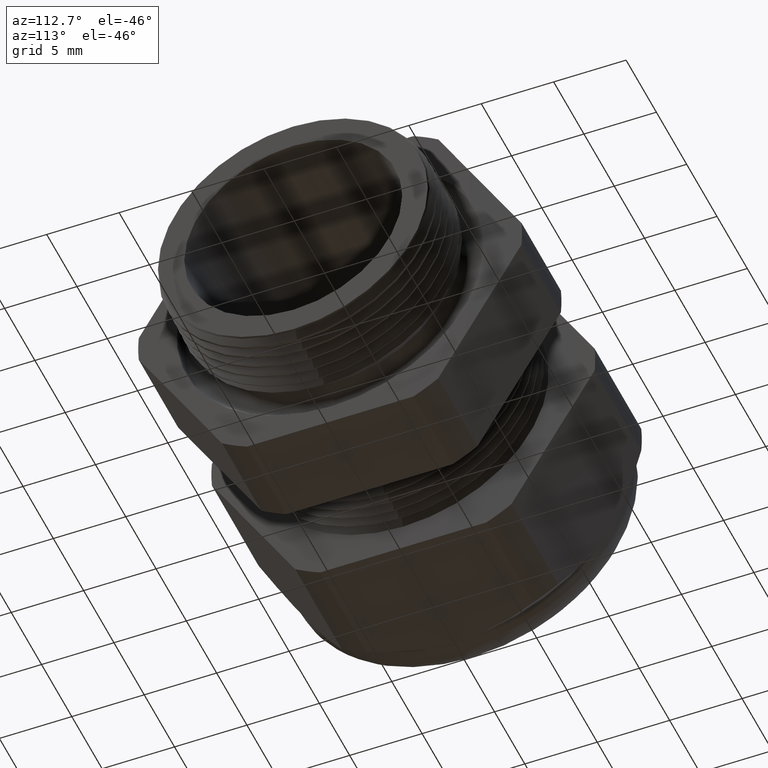
[diagram: clean part render]
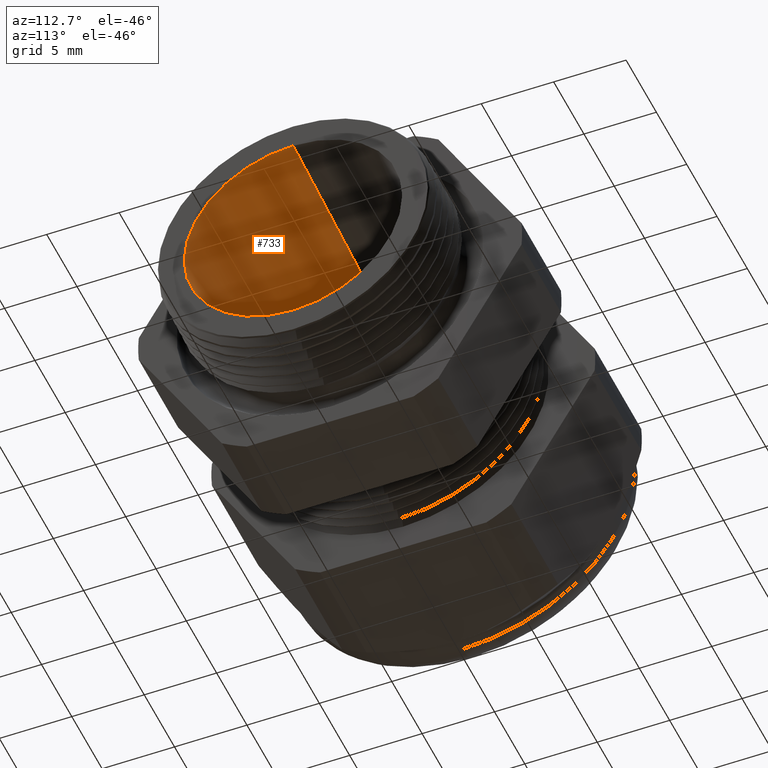
[diagram: same view with one face highlighted and labeled with its STEP entity id]
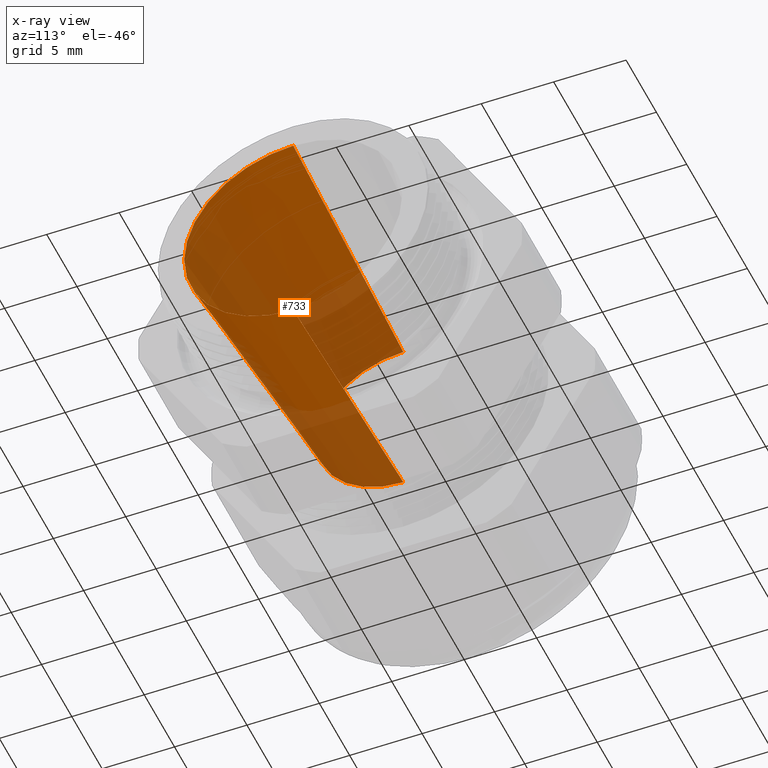
[diagram: x-ray of the same camera — body ghosted, the highlighted face saturated]
A machine part, auxiliary view. The second image highlights one B-rep face of the part: STEP entity #733.
The next image is the same camera in x-ray: the body ghosted, the highlighted face saturated — about 32% of this face is hidden behind the body in this view.
In plain terms, the highlighted conical surface has half-angle 4.895 deg.
Its self-contained STEP definition (entity closure, byte-faithful):
#733 = ADVANCED_FACE ( 'NONE', ( #2550 ), #2549, .F. ) ;
#734 = EDGE_LOOP ( 'NONE', ( #789, #793, #796, #799 ) ) ;
#789 = ORIENTED_EDGE ( 'NONE', *, *, #790, .F. ) ;
#790 = EDGE_CURVE ( 'NONE', #791, #792, #2693, .T. ) ;
#791 = VERTEX_POINT ( 'NONE', #2688 ) ;
#792 = VERTEX_POINT ( 'NONE', #2687 ) ;
#793 = ORIENTED_EDGE ( 'NONE', *, *, #794, .T. ) ;
#794 = EDGE_CURVE ( 'NONE', #791, #795, #2686, .T. ) ;
#795 = VERTEX_POINT ( 'NONE', #2682 ) ;
#796 = ORIENTED_EDGE ( 'NONE', *, *, #797, .T. ) ;
#797 = EDGE_CURVE ( 'NONE', #795, #798, #2681, .T. ) ;
#798 = VERTEX_POINT ( 'NONE', #2676 ) ;
#799 = ORIENTED_EDGE ( 'NONE', *, *, #800, .F. ) ;
#800 = EDGE_CURVE ( 'NONE', #792, #798, #2740, .T. ) ;
#2549 = CONICAL_SURFACE ( 'NONE', #2613, 0.2349999999999999900, 0.08542605105028124000 ) ;
#2550 = FACE_OUTER_BOUND ( 'NONE', #734, .T. ) ;
#2610 = DIRECTION ( 'NONE',  ( 0.0000000000000000000, 0.0000000000000000000, -1.000000000000000000 ) ) ;
#2611 = DIRECTION ( 'NONE',  ( 1.000000000000000000, 0.0000000000000000000, 0.0000000000000000000 ) ) ;
#2612 = CARTESIAN_POINT ( 'NONE',  ( -0.7854330708661414500, 0.0000000000000000000, 0.0000000000000000000 ) ) ;
#2613 = AXIS2_PLACEMENT_3D ( 'NONE', #2612, #2611, #2610 ) ;
#2676 = CARTESIAN_POINT ( 'NONE',  ( -0.06999999999999996500, 0.0000000000000000000, -0.2962657257183017900 ) ) ;
#2677 = DIRECTION ( 'NONE',  ( 0.0000000000000000000, 0.0000000000000000000, -1.000000000000000000 ) ) ;
#2678 = DIRECTION ( 'NONE',  ( 1.000000000000000000, 0.0000000000000000000, 0.0000000000000000000 ) ) ;
#2679 = CARTESIAN_POINT ( 'NONE',  ( -0.06999999999999996500, 0.0000000000000000000, 0.0000000000000000000 ) ) ;
#2680 = AXIS2_PLACEMENT_3D ( 'NONE', #2679, #2678, #2677 ) ;
#2681 = CIRCLE ( 'NONE', #2680, 0.2962657257183017900 ) ;
#2682 = CARTESIAN_POINT ( 'NONE',  ( -0.06999999999999996500, 3.628208726979859300E-017, 0.2962657257183017900 ) ) ;
#2683 = DIRECTION ( 'NONE',  ( 0.9963534133243852100, 1.044895443711659700E-017, 0.08532218795159196600 ) ) ;
#2684 = VECTOR ( 'NONE', #2683, 39.37007874015748900 ) ;
#2685 = CARTESIAN_POINT ( 'NONE',  ( -0.7854330708661414500, 2.877919977996279800E-017, 0.2349999999999999900 ) ) ;
#2686 = LINE ( 'NONE', #2685, #2684 ) ;
#2687 = CARTESIAN_POINT ( 'NONE',  ( -0.7854330708661414500, 0.0000000000000000000, -0.2349999999999999900 ) ) ;
#2688 = CARTESIAN_POINT ( 'NONE',  ( -0.7854330708661414500, 2.877919977996279800E-017, 0.2349999999999999900 ) ) ;
#2689 = DIRECTION ( 'NONE',  ( 0.0000000000000000000, 0.0000000000000000000, -1.000000000000000000 ) ) ;
#2690 = DIRECTION ( 'NONE',  ( 1.000000000000000000, 0.0000000000000000000, 0.0000000000000000000 ) ) ;
#2691 = CARTESIAN_POINT ( 'NONE',  ( -0.7854330708661414500, 0.0000000000000000000, 0.0000000000000000000 ) ) ;
#2692 = AXIS2_PLACEMENT_3D ( 'NONE', #2691, #2690, #2689 ) ;
#2693 = CIRCLE ( 'NONE', #2692, 0.2349999999999999900 ) ;
#2737 = DIRECTION ( 'NONE',  ( 0.9963534133243852100, 0.0000000000000000000, -0.08532218795159196600 ) ) ;
#2738 = VECTOR ( 'NONE', #2737, 39.37007874015748900 ) ;
#2739 = CARTESIAN_POINT ( 'NONE',  ( -0.7854330708661414500, 0.0000000000000000000, -0.2349999999999999900 ) ) ;
#2740 = LINE ( 'NONE', #2739, #2738 ) ;